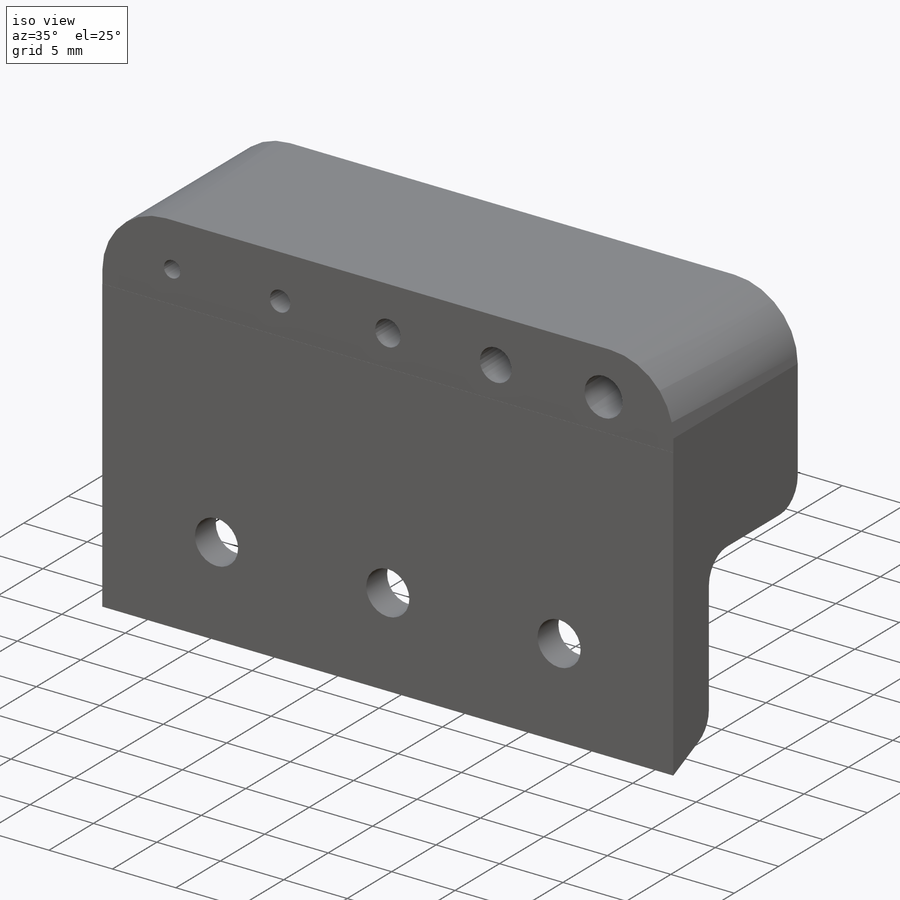
[diagram: iso view]
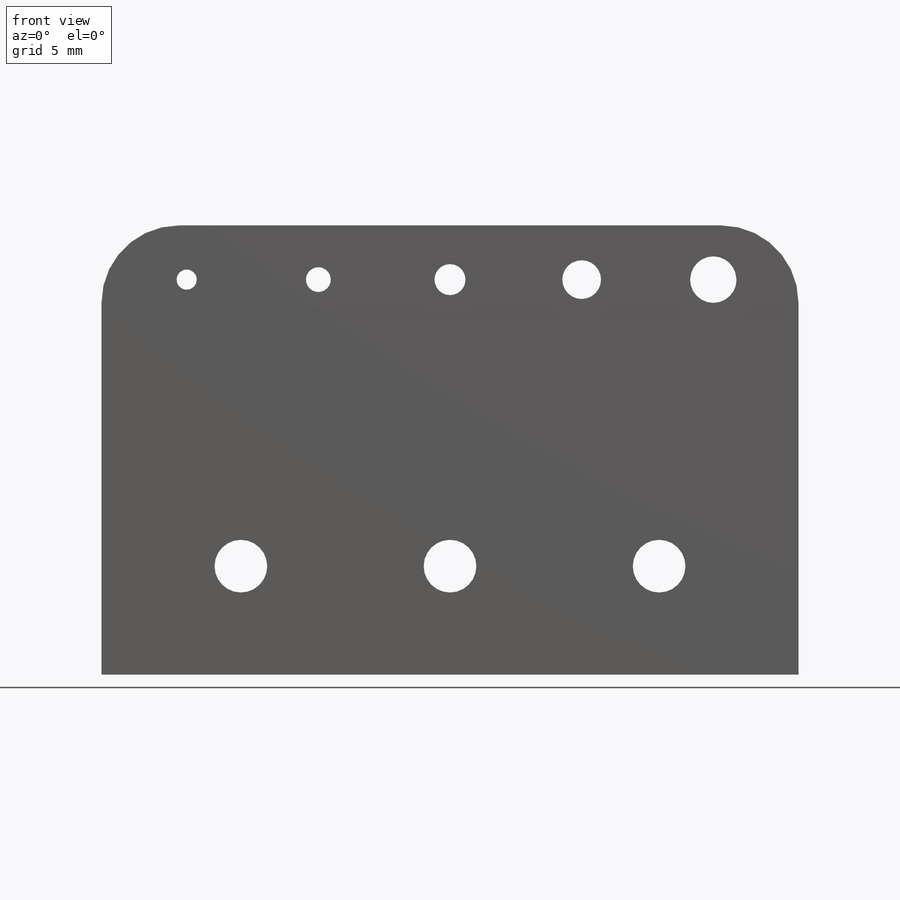
[diagram: front view]
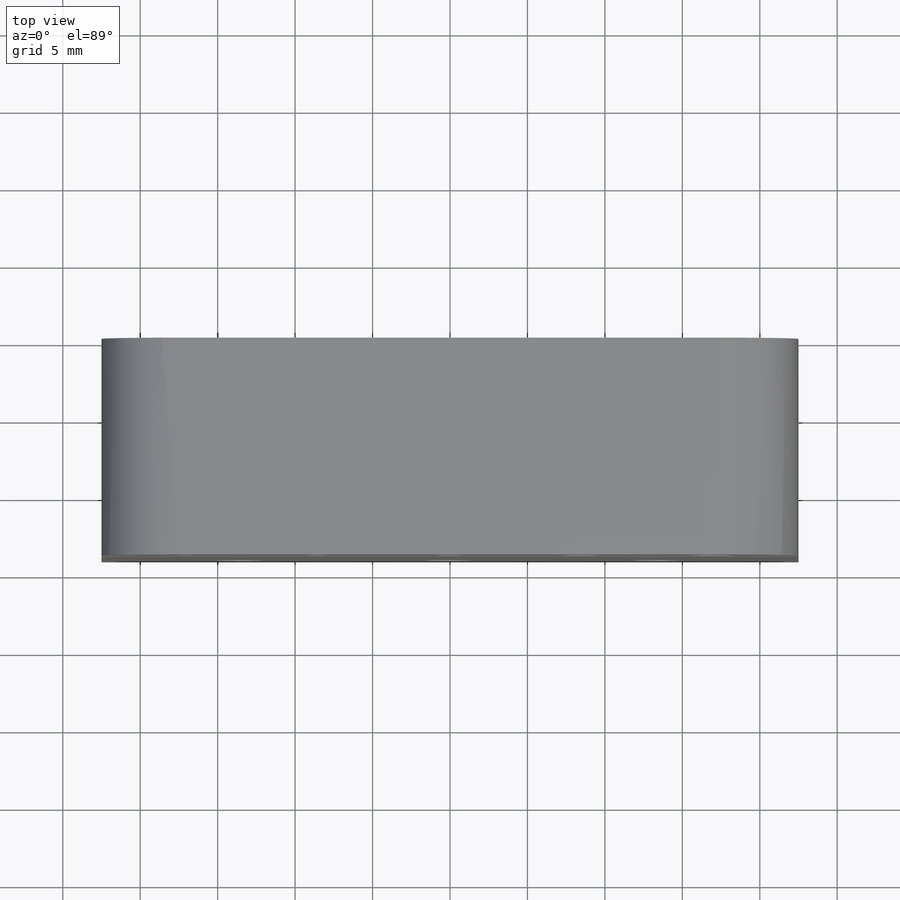
[diagram: top view]
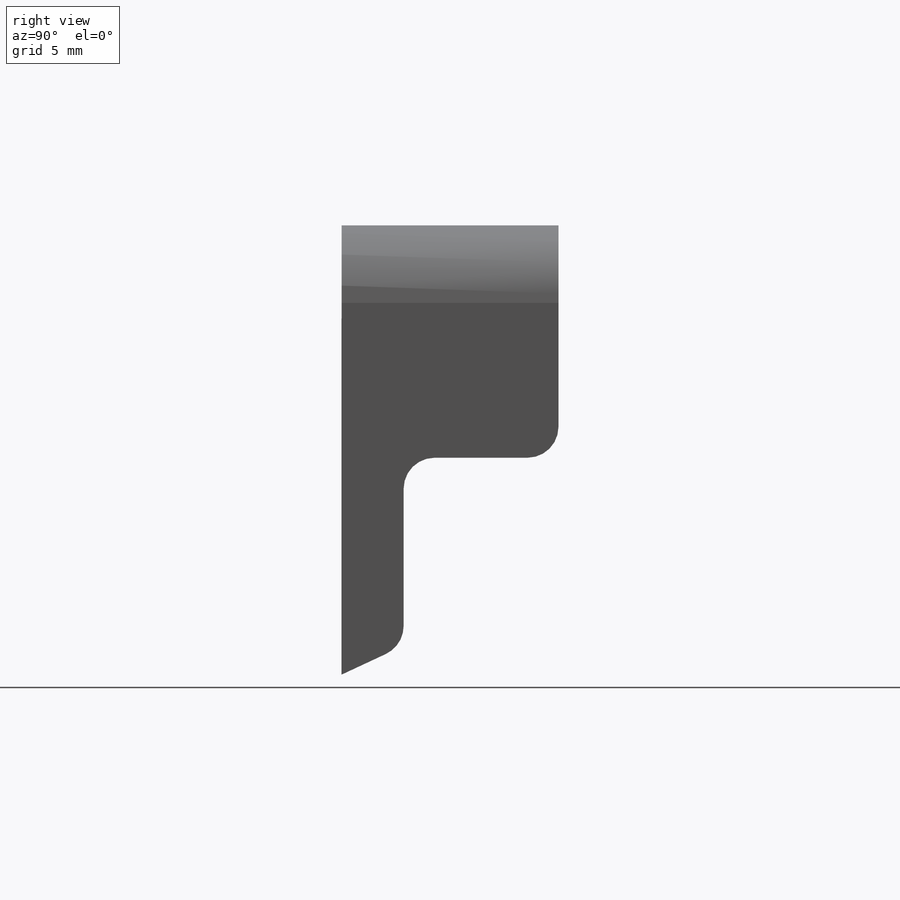
[diagram: right view]
SOLIDWORKS PART (.sldprt)
format: sldprt  version: not decoded by parser v0  size: 550,912 bytes
history: native  units: mm
features: sketch x11, fillet x4, plane x3, cut_extrude x3, hole x3, extrude x2, material x1, chamfer x1 (+10 scaffold rows collapsed)
feature tree (38):
  scaffold x10  (default folders/planes/origin — collapsed)
  material  "Alliage 2018"
  plane  "Plan de face"
  plane  "Plan de dessus"
  plane  "Plan de droite"
  sketch  "Esquisse1"  dims[c1.D1=~28.674718mm c1.D2=~47.327205mm c2.D1=29.0mm c2.D2=45.0mm]
  extrude  "Boss.-Extru.1"  Depth=14mm
  sketch  "Esquisse8"  dims[c1.D1=0.0mm c1.D2=45.0mm c2.D1=~23.944202mm c2.D2=45.0mm c3.D1=23.0mm]
  extrude  "Boss.-Extru.2"  Depth=0.01mm
  sketch  "Esquisse3"  dims[c1.D3=~2.282742mm c1.D7=3.0mm c1.D8=2.5mm c1.D9=2.0mm c1.D10=1.6mm c1.D11=1.3mm c1.D1=23.0mm c1.D2=2.5mm c2.D3=8.5mm c2.D4=8.5mm c2.D5=8.5mm c2.D6=8.5mm c2.D9=4.0mm]
  cut_extrude  "Enlèv. mat.-Extru.2"  Depth=10mm
  sketch  "Esquisse4"  dims[c1.D1=~21.783307mm c1.D2=~13.854175mm c2.D1=10.0mm c2.D2=14.0mm]
  cut_extrude  "Enlèv. mat.-Extru.3"  [1 undecoded]
  fillet  "Congé1"  Radius=5mm
  fillet  "Congé2"  Radius=2mm
  sketch  "Esquisse5"  dims[c1.D1=3.0mm c1.D2=3.0mm c1.D3=3.0mm c1.D4=3.0mm c2.D1=~46.774353mm c2.D5=5.0mm]
  cut_extrude  "Enlèv. mat.-Extru.4"  Depth=13mm
  hole  "Fraisage pour vis à tête fraisée à 6 pans creux M31"  Diameter=3.4mm Depth=4.010025mm
  sketch  "Esquisse10"  dims[D1=7.0mm D2=9.0mm D3=9.0mm]
  sketch  "Esquisse9"  dims[hole-wizard template sketch: 55 standard entries collapsed; hole parameters kept: c17.Profondeur du perçage jusqu'au prochain=~4.010025mm c17.Diamètre du fraisage entrant=6.72mm c17.D4=~3.666174mm c17.Angle du fraisage entrant=90.0deg]
  hole  "Trou pour taraudage pour trou taraudé M51"  Diameter=4.2mm Depth=6mm
  sketch  "Esquisse12"  dims[c1.D1=5.0mm c1.D2=1.0mm c2.D1=5.0mm]
  sketch  "Esquisse11"  dims[hole-wizard template sketch: 46 standard entries collapsed; hole parameters kept: c15.Diamètre du perçage=4.2mm c15.Profondeur du perçage=6.0mm c15.D3=~14.816244mm c15.Angle de pointe=118.0deg]
  hole  "Dégagement M2.51"  Diameter=2.9mm Depth=5mm
  sketch  "Esquisse15"  dims[D1=6.0mm D2=10.0mm D3=10.0mm]
  sketch  "Esquisse14"  dims[hole-wizard template sketch: 46 standard entries collapsed; hole parameters kept: c15.Diamètre du perçage=2.9mm c15.Profondeur du perçage=5.0mm c15.D3=~14.816244mm c15.Angle de pointe=118.0deg]
  fillet  "Congé4"  Radius=2mm
  chamfer  "Chanfrein1"  Distance=4mm
  fillet  "Congé5"  Radius=2mm
decode coverage: 23 of 24 modeling features carry decoded parameters
note: ~ marks probable driven/reference dimensions
note: 1 parameter value undecoded
note: suppression state not decoded; provenance and decode notes live in map.json
